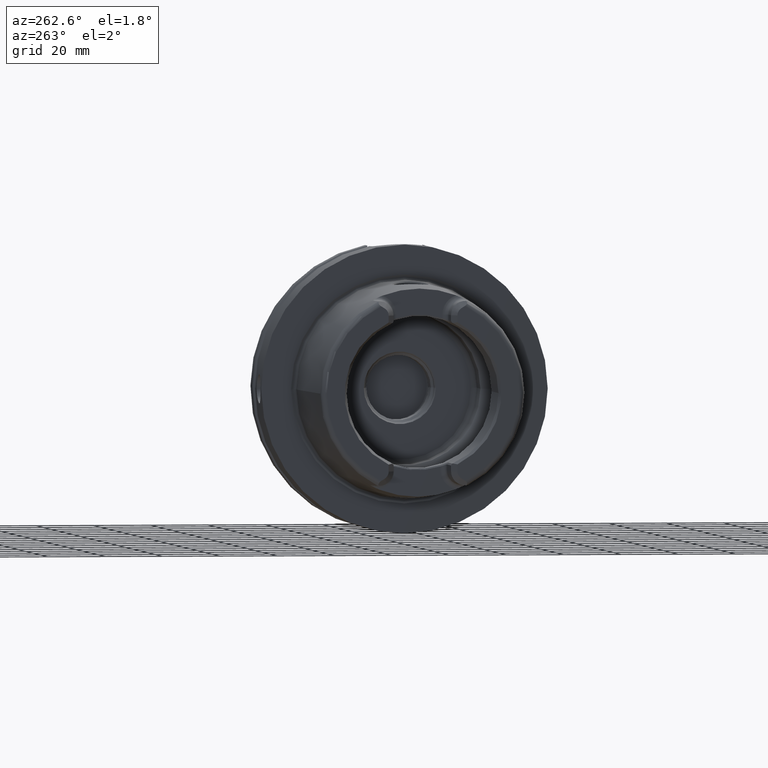
[diagram: clean part render]
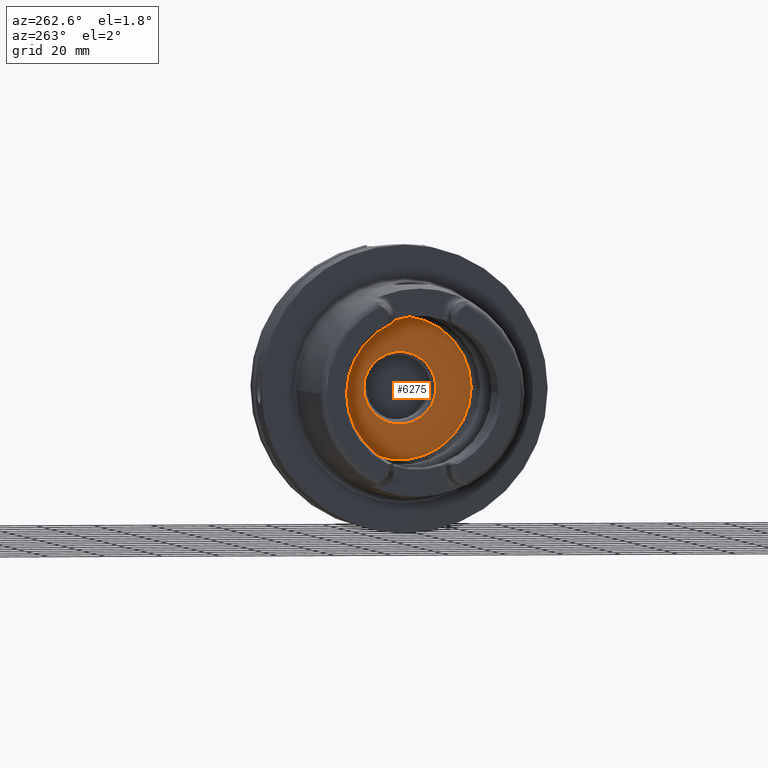
[diagram: same view with one face highlighted and labeled with its STEP entity id]
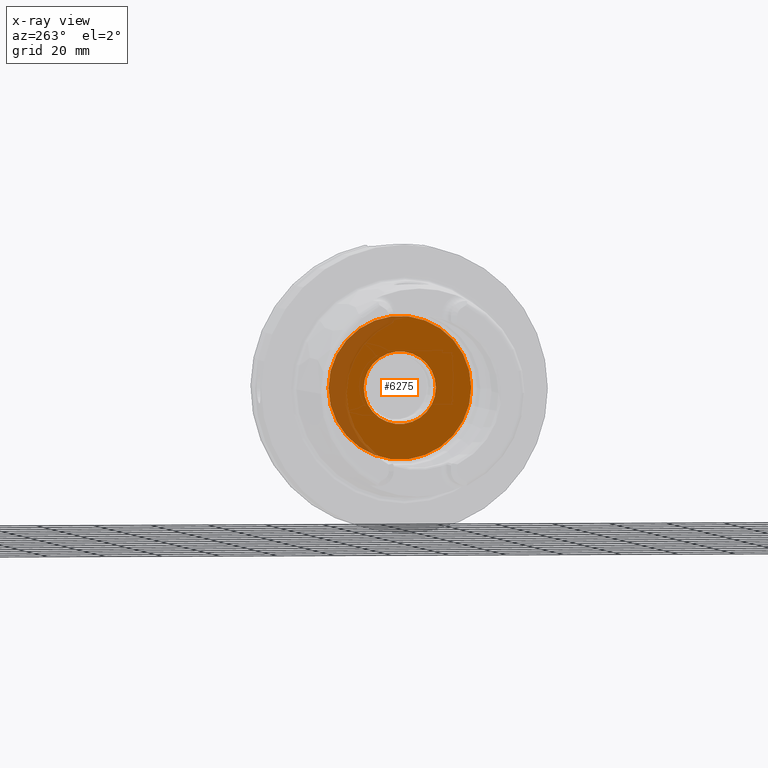
[diagram: x-ray of the same camera — body ghosted, the highlighted face saturated]
A machine part, auxiliary view. The second image highlights one B-rep face of the part: STEP entity #6275.
The next image is the same camera in x-ray: the body ghosted, the highlighted face saturated — about 20% of this face is hidden behind the body in this view.
In plain terms, the highlighted planar face has unit normal (1, 0, 0).
Its self-contained STEP definition (entity closure, byte-faithful):
#2584=CARTESIAN_POINT('',(1.25E1,0.E0,0.E0));
#2585=DIRECTION('',(1.E0,0.E0,0.E0));
#2586=DIRECTION('',(0.E0,1.E0,0.E0));
#2587=AXIS2_PLACEMENT_3D('',#2584,#2585,#2586);
#2594=CARTESIAN_POINT('',(1.25E1,0.E0,0.E0));
#2595=DIRECTION('',(-1.E0,0.E0,0.E0));
#2596=DIRECTION('',(0.E0,1.E0,0.E0));
#2597=AXIS2_PLACEMENT_3D('',#2594,#2595,#2596);
#2604=CARTESIAN_POINT('',(1.25E1,0.E0,0.E0));
#2605=DIRECTION('',(1.E0,0.E0,0.E0));
#2606=DIRECTION('',(0.E0,-1.E0,0.E0));
#2607=AXIS2_PLACEMENT_3D('',#2604,#2605,#2606);
#2609=CARTESIAN_POINT('',(1.25E1,0.E0,0.E0));
#2610=DIRECTION('',(1.E0,0.E0,0.E0));
#2611=DIRECTION('',(0.E0,1.E0,0.E0));
#2612=AXIS2_PLACEMENT_3D('',#2609,#2610,#2611);
#3049=CARTESIAN_POINT('',(1.25E1,2.49E1,0.E0));
#3051=VERTEX_POINT('',#3049);
#3053=CARTESIAN_POINT('',(1.25E1,-2.49E1,0.E0));
#3055=VERTEX_POINT('',#3053);
#3437=CARTESIAN_POINT('',(1.25E1,-1.25665E1,0.E0));
#3438=CARTESIAN_POINT('',(1.25E1,1.25665E1,0.E0));
#3439=VERTEX_POINT('',#3437);
#3440=VERTEX_POINT('',#3438);
#6260=CARTESIAN_POINT('',(1.25E1,0.E0,0.E0));
#6261=DIRECTION('',(1.E0,0.E0,0.E0));
#6262=DIRECTION('',(0.E0,-1.E0,0.E0));
#6263=AXIS2_PLACEMENT_3D('',#6260,#6261,#6262);
#6264=PLANE('',#6263);
#6265=ORIENTED_EDGE('',*,*,#6242,.T.);
#6266=ORIENTED_EDGE('',*,*,#6253,.F.);
#6267=EDGE_LOOP('',(#6265,#6266));
#6268=FACE_OUTER_BOUND('',#6267,.F.);
#6270=ORIENTED_EDGE('',*,*,#6269,.F.);
#6272=ORIENTED_EDGE('',*,*,#6271,.F.);
#6273=EDGE_LOOP('',(#6270,#6272));
#6274=FACE_BOUND('',#6273,.F.);
#6275=ADVANCED_FACE('',(#6268,#6274),#6264,.F.);
#2588=CIRCLE('',#2587,2.49E1);
#2598=CIRCLE('',#2597,2.49E1);
#2608=CIRCLE('',#2607,1.25665E1);
#2613=CIRCLE('',#2612,1.25665E1);
#6242=EDGE_CURVE('',#3051,#3055,#2588,.T.);
#6253=EDGE_CURVE('',#3051,#3055,#2598,.T.);
#6269=EDGE_CURVE('',#3439,#3440,#2608,.T.);
#6271=EDGE_CURVE('',#3440,#3439,#2613,.T.);